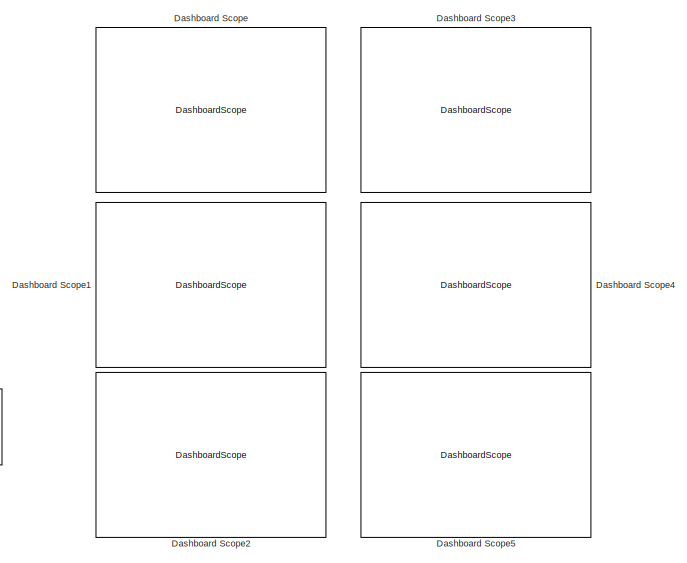
[diagram: root canvas - part 1/4, top center region]
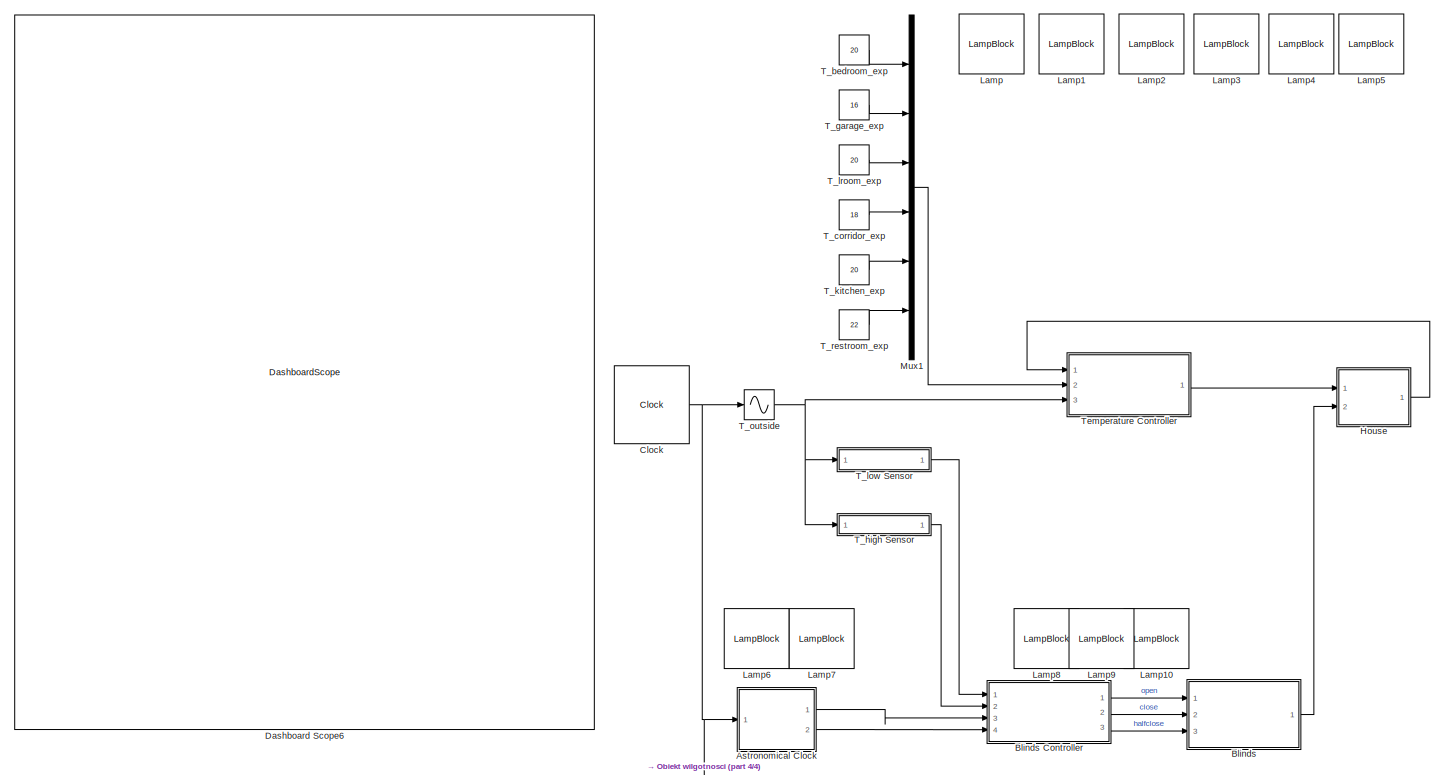
[diagram: root canvas - part 2/4, middle left region]
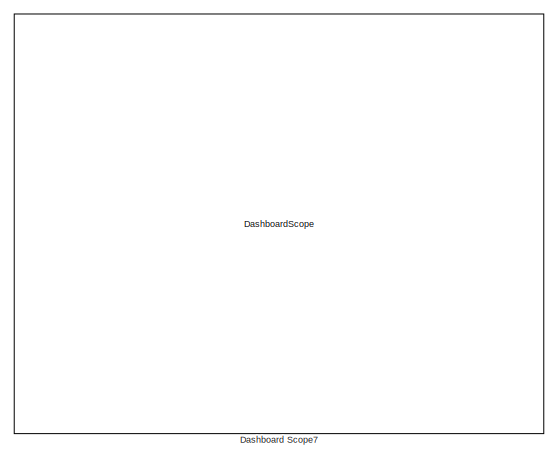
[diagram: root canvas - part 3/4, bottom right region]
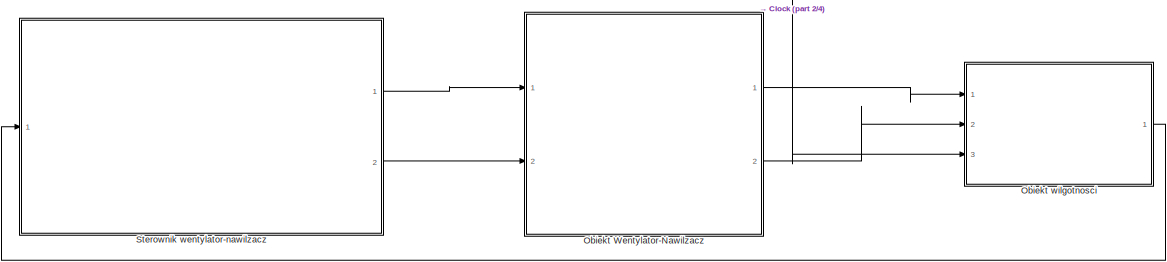
[diagram: root canvas - part 4/4, bottom center region]
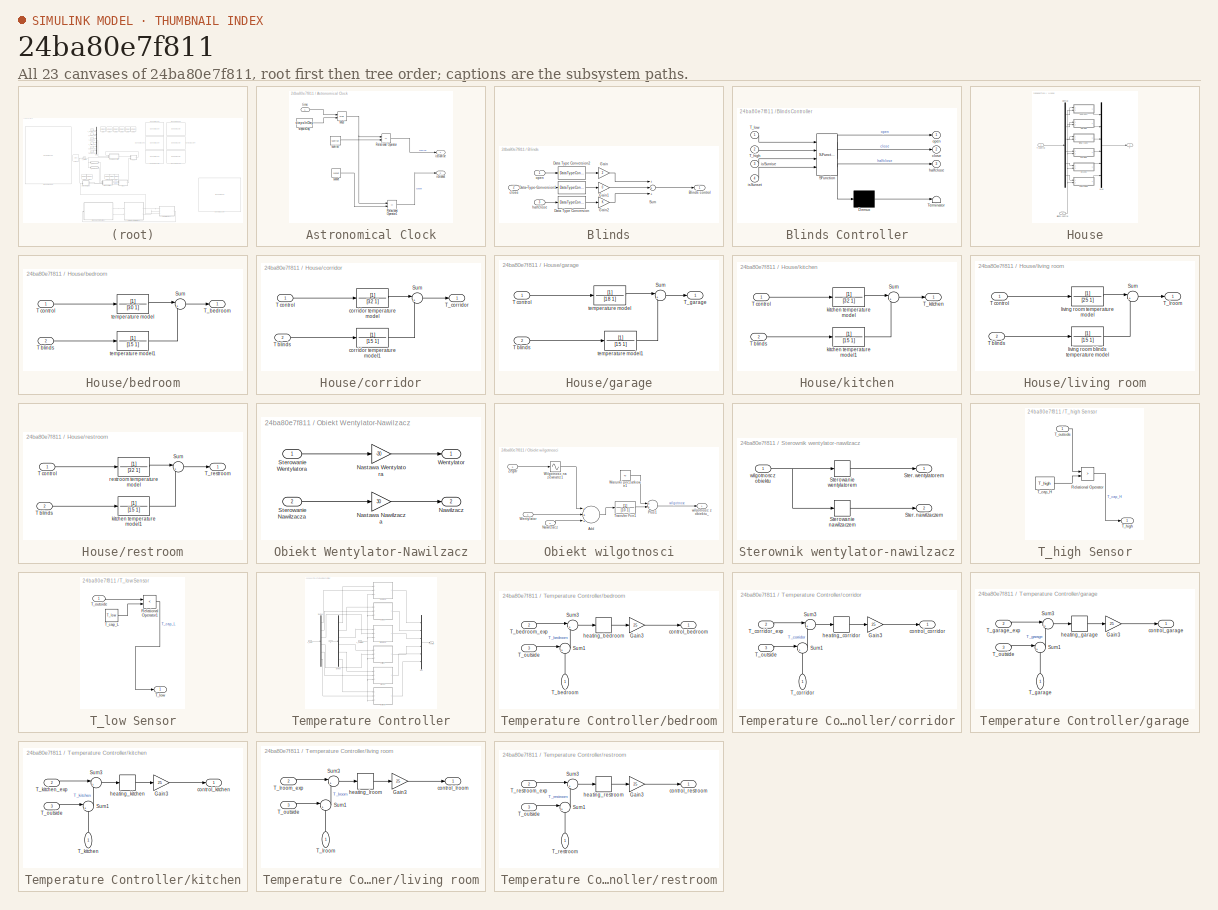
[diagram: thumbnail index - all 23 canvases of the model, root first then tree order]
MODEL slx_24ba80e7f811
KIND model
CONFIG AbsTol = auto
CONFIG EnableMultiTasking = off
CONFIG FixedStep = auto
CONFIG MaxStep = auto
CONFIG MinStep = auto
CONFIG RelTol = 1e-3
CONFIG SampleTimeConstraint = Unconstrained
CONFIG Solver = VariableStepAuto
CONFIG SolverName = VariableStepAuto
CONFIG StartTime = 0.0
CONFIG StopTime = intervals
BLOCK [SubSystem] Astronomical Clock
  Ports = [1, 2]
  RequestExecContextInheritance = off
BLOCK [Math] Astronomical Clock/Mod
  Operator = mod
  Ports = [2, 1]
BLOCK [RelationalOperator] Astronomical Clock/Relational Operator
  InputSameDT = off
  Operator = ==
  OutDataTypeStr = boolean
  Ports = [2, 1]
  RndMeth = Simplest
BLOCK [RelationalOperator] Astronomical Clock/Relational Operator1
  InputSameDT = off
  Operator = ==
  OutDataTypeStr = boolean
  Ports = [2, 1]
  RndMeth = Simplest
BLOCK [Outport] Astronomical Clock/isSunrise
  IconDisplay = Port number
BLOCK [Outport] Astronomical Clock/isSunset
  IconDisplay = Port number
  Port = 2
BLOCK [Constant] Astronomical Clock/stepsInDay
  Value = stepsInDay
BLOCK [Constant] Astronomical Clock/sunrise
  Value = sunrise
BLOCK [Constant] Astronomical Clock/sunset
  Value = sunset
BLOCK [Inport] Astronomical Clock/time
  IconDisplay = Port number
BLOCK [SubSystem] Blinds
  Ports = [3, 1]
  RequestExecContextInheritance = off
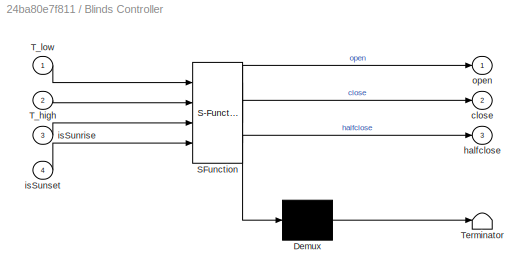
BLOCK [SubSystem] Blinds Controller
  ErrorFcn = Stateflow.Translate.translate
  PermitHierarchicalResolution = ExplicitOnly
  Ports = [4, 3]
  RequestExecContextInheritance = off
  SFBlockType = Chart
  TreatAsAtomicUnit = on
BLOCK [Demux] Blinds Controller/ Demux 
  Outputs = 1
  Ports = [1, 1]
BLOCK [S-Function] Blinds Controller/ SFunction 
  EnableBusSupport = on
  FunctionName = sf_sfun
  PortCounts = [4 4]
  Ports = [4, 4]
  SFcnIsStateOwnerBlock = off
  SFunctionDeploymentMode = off
  Tag = Stateflow S-Function test_27112020 3
BLOCK [Terminator] Blinds Controller/ Terminator 
BLOCK [Inport] Blinds Controller/T_high
  IconDisplay = Port number
  Port = 2
BLOCK [Inport] Blinds Controller/T_low
  IconDisplay = Port number
BLOCK [Outport] Blinds Controller/close
  IconDisplay = Port number
  Port = 2
BLOCK [Outport] Blinds Controller/halfclose
  IconDisplay = Port number
  Port = 3
BLOCK [Inport] Blinds Controller/isSunrise
  IconDisplay = Port number
  Port = 3
BLOCK [Inport] Blinds Controller/isSunset
  IconDisplay = Port number
  Port = 4
BLOCK [Outport] Blinds Controller/open
  IconDisplay = Port number
BLOCK [Outport] Blinds/Blinds control
  IconDisplay = Port number
BLOCK [DataTypeConversion] Blinds/Data Type Conversion
  RndMeth = Floor
  SaturateOnIntegerOverflow = off
BLOCK [DataTypeConversion] Blinds/Data Type Conversion1
  RndMeth = Floor
  SaturateOnIntegerOverflow = off
BLOCK [DataTypeConversion] Blinds/Data Type Conversion2
  RndMeth = Floor
  SaturateOnIntegerOverflow = off
BLOCK [Gain] Blinds/Gain
  Gain = 2
  OutDataTypeStr = Inherit: Inherit via internal rule
  ParamDataTypeStr = Inherit: Inherit via internal rule
  SaturateOnIntegerOverflow = off
BLOCK [Gain] Blinds/Gain1
  Gain = 0
  OutDataTypeStr = Inherit: Inherit via internal rule
  ParamDataTypeStr = Inherit: Inherit via internal rule
  SaturateOnIntegerOverflow = off
BLOCK [Gain] Blinds/Gain2
  OutDataTypeStr = Inherit: Inherit via internal rule
  ParamDataTypeStr = Inherit: Inherit via internal rule
  SaturateOnIntegerOverflow = off
BLOCK [Sum] Blinds/Sum
  InputSameDT = off
  Inputs = +++
  OutDataTypeStr = Inherit: Inherit via internal rule
  Ports = [3, 1]
  SaturateOnIntegerOverflow = off
BLOCK [Inport] Blinds/close
  IconDisplay = Port number
  Port = 2
BLOCK [Inport] Blinds/halfclose
  IconDisplay = Port number
  Port = 3
BLOCK [Inport] Blinds/open
  IconDisplay = Port number
BLOCK [Clock] Clock 
  Decimation = 1
  DisplayTime = on
BLOCK [DashboardScope] Dashboard Scope
  WebBlockId = 48
BLOCK [DashboardScope] Dashboard Scope1
  WebBlockId = 49
BLOCK [DashboardScope] Dashboard Scope2
  WebBlockId = 50
BLOCK [DashboardScope] Dashboard Scope3
  WebBlockId = 51
BLOCK [DashboardScope] Dashboard Scope4
  WebBlockId = 52
BLOCK [DashboardScope] Dashboard Scope5
  WebBlockId = 53
BLOCK [DashboardScope] Dashboard Scope6
  WebBlockId = 54
  Ymax = 30
BLOCK [DashboardScope] Dashboard Scope7
  WebBlockId = 194
  Ymax = 100
  Ymin = 40
BLOCK [SubSystem] House
  Ports = [2, 1]
  RequestExecContextInheritance = off
BLOCK [Inport] House/Blinds control
  IconDisplay = Port number
  Port = 2
BLOCK [Demux] House/Demux
  DisplayOption = bar
  Outputs = 6
  Ports = [1, 6]
BLOCK [Mux] House/Mux
  DisplayOption = bar
  Inputs = 6
  Ports = [6, 1]
BLOCK [Outport] House/T
  IconDisplay = Port number
BLOCK [Inport] House/T control
  IconDisplay = Port number
BLOCK [SubSystem] House/bedroom
  Ports = [2, 1]
  RequestExecContextInheritance = off
BLOCK [Sum] House/bedroom/Sum
  IconShape = round
  InputSameDT = off
  Inputs = |++
  OutDataTypeStr = Inherit: Inherit via internal rule
  Ports = [2, 1]
  SaturateOnIntegerOverflow = off
BLOCK [Inport] House/bedroom/T blinds
  IconDisplay = Port number
  Port = 2
BLOCK [Inport] House/bedroom/T control
  IconDisplay = Port number
BLOCK [Outport] House/bedroom/T_bedroom
  IconDisplay = Port number
BLOCK [TransferFcn] House/bedroom/temperature model
  Denominator = [30 1]
BLOCK [TransferFcn] House/bedroom/temperature model1
  Denominator = [15 1]
BLOCK [SubSystem] House/corridor
  Ports = [2, 1]
  RequestExecContextInheritance = off
BLOCK [Sum] House/corridor/Sum
  IconShape = round
  InputSameDT = off
  Inputs = |++
  OutDataTypeStr = Inherit: Inherit via internal rule
  Ports = [2, 1]
  SaturateOnIntegerOverflow = off
BLOCK [Inport] House/corridor/T blinds
  IconDisplay = Port number
  Port = 2
BLOCK [Inport] House/corridor/T control
  IconDisplay = Port number
BLOCK [Outport] House/corridor/T_corridor
  IconDisplay = Port number
BLOCK [TransferFcn] House/corridor/corridor temperature model
  Denominator = [32 1]
BLOCK [TransferFcn] House/corridor/corridor temperature model1
  Denominator = [15 1]
BLOCK [SubSystem] House/garage
  Ports = [2, 1]
  RequestExecContextInheritance = off
BLOCK [Sum] House/garage/Sum
  IconShape = round
  InputSameDT = off
  Inputs = |++
  OutDataTypeStr = Inherit: Inherit via internal rule
  Ports = [2, 1]
  SaturateOnIntegerOverflow = off
BLOCK [Inport] House/garage/T blinds
  IconDisplay = Port number
  Port = 2
BLOCK [Inport] House/garage/T control
  IconDisplay = Port number
BLOCK [Outport] House/garage/T_garage
  IconDisplay = Port number
BLOCK [TransferFcn] House/garage/temperature model
  Denominator = [18 1]
BLOCK [TransferFcn] House/garage/temperature model1
  Denominator = [15 1]
BLOCK [SubSystem] House/kitchen
  Ports = [2, 1]
  RequestExecContextInheritance = off
BLOCK [Sum] House/kitchen/Sum
  IconShape = round
  InputSameDT = off
  Inputs = |++
  OutDataTypeStr = Inherit: Inherit via internal rule
  Ports = [2, 1]
  SaturateOnIntegerOverflow = off
BLOCK [Inport] House/kitchen/T blinds
  IconDisplay = Port number
  Port = 2
BLOCK [Inport] House/kitchen/T control
  IconDisplay = Port number
BLOCK [Outport] House/kitchen/T_kitchen
  IconDisplay = Port number
BLOCK [TransferFcn] House/kitchen/kitchen temperature model
  Denominator = [32 1]
BLOCK [TransferFcn] House/kitchen/kitchen temperature model1
  Denominator = [15 1]
BLOCK [SubSystem] House/living room
  Ports = [2, 1]
  RequestExecContextInheritance = off
BLOCK [Sum] House/living room/Sum
  IconShape = round
  InputSameDT = off
  Inputs = |++
  OutDataTypeStr = Inherit: Inherit via internal rule
  Ports = [2, 1]
  SaturateOnIntegerOverflow = off
BLOCK [Inport] House/living room/T blinds
  IconDisplay = Port number
  Port = 2
BLOCK [Inport] House/living room/T control
  IconDisplay = Port number
BLOCK [Outport] House/living room/T_lroom
  IconDisplay = Port number
BLOCK [TransferFcn] House/living room/living room blinds temperature model
  Denominator = [15 1]
BLOCK [TransferFcn] House/living room/living room temperature model
  Denominator = [25 1]
BLOCK [SubSystem] House/restroom
  Ports = [2, 1]
  RequestExecContextInheritance = off
BLOCK [Sum] House/restroom/Sum
  IconShape = round
  InputSameDT = off
  Inputs = |++
  OutDataTypeStr = Inherit: Inherit via internal rule
  Ports = [2, 1]
  SaturateOnIntegerOverflow = off
BLOCK [Inport] House/restroom/T blinds
  IconDisplay = Port number
  Port = 2
BLOCK [Inport] House/restroom/T control
  IconDisplay = Port number
BLOCK [Outport] House/restroom/T_restroom
  IconDisplay = Port number
BLOCK [TransferFcn] House/restroom/kitchen temperature model1
  Denominator = [15 1]
BLOCK [TransferFcn] House/restroom/restroom temperature model
  Denominator = [32 1]
BLOCK [LampBlock] Lamp
  WebBlockId = 103
BLOCK [LampBlock] Lamp1
  WebBlockId = 104
BLOCK [LampBlock] Lamp10
  WebBlockId = 105
BLOCK [LampBlock] Lamp2
  WebBlockId = 106
BLOCK [LampBlock] Lamp3
  WebBlockId = 107
BLOCK [LampBlock] Lamp4
  WebBlockId = 108
BLOCK [LampBlock] Lamp5
  WebBlockId = 109
BLOCK [LampBlock] Lamp6
  WebBlockId = 110
BLOCK [LampBlock] Lamp7
  WebBlockId = 111
BLOCK [LampBlock] Lamp8
  WebBlockId = 112
BLOCK [LampBlock] Lamp9
  WebBlockId = 113
BLOCK [Mux] Mux1
  DisplayOption = bar
  Inputs = 6
  Ports = [6, 1]
BLOCK [SubSystem] Obiekt Wentylator-Nawilzacz
  Ports = [2, 2]
  RequestExecContextInheritance = off
BLOCK [Gain] Obiekt Wentylator-Nawilzacz/Nastawa Nawilzacza
  Gain = 30
  OutDataTypeStr = Inherit: Inherit via internal rule
  ParamDataTypeStr = Inherit: Inherit via internal rule
  SaturateOnIntegerOverflow = off
BLOCK [Gain] Obiekt Wentylator-Nawilzacz/Nastawa Wentylatora
  Gain = -30
  OutDataTypeStr = Inherit: Inherit via internal rule
  ParamDataTypeStr = Inherit: Inherit via internal rule
  SaturateOnIntegerOverflow = off
BLOCK [Outport] Obiekt Wentylator-Nawilzacz/Nawilzacz
  IconDisplay = Port number
  Port = 2
BLOCK [Inport] Obiekt Wentylator-Nawilzacz/Sterowanie Nawilzacza
  IconDisplay = Port number
  Port = 2
BLOCK [Inport] Obiekt Wentylator-Nawilzacz/Sterowanie Wentylatora
  IconDisplay = Port number
BLOCK [Outport] Obiekt Wentylator-Nawilzacz/Wentylator
  IconDisplay = Port number
BLOCK [SubSystem] Obiekt wilgotnosci
  Ports = [3, 1]
  RequestExecContextInheritance = off
BLOCK [Sum] Obiekt wilgotnosci/Add
  InputSameDT = off
  Inputs = +++
  OutDataTypeStr = Inherit: Inherit via internal rule
  Ports = [3, 1]
  SaturateOnIntegerOverflow = off
BLOCK [Inport] Obiekt wilgotnosci/Nawilzacz
  IconDisplay = Port number
  Port = 2
BLOCK [Sum] Obiekt wilgotnosci/Plus1
  InputSameDT = off
  OutDataTypeStr = Inherit: Inherit via internal rule
  Ports = [2, 1]
  SaturateOnIntegerOverflow = off
BLOCK [TransferFcn] Obiekt wilgotnosci/Transfer Fcn1
  Denominator = [10 1]
BLOCK [Constant] Obiekt wilgotnosci/Warunki poczatkowe1
  Value = 40
BLOCK [Inport] Obiekt wilgotnosci/Wentylator
  IconDisplay = Port number
BLOCK [Sin] Obiekt wilgotnosci/Wilgotnosc na zewnatrz1
  Amplitude = 20
  Bias = 20
  Frequency = 2*pi/intervals
  Phase = -pi/2
  Ports = [1, 1]
  SampleTime = 0
  TimeSource = Use external signal
BLOCK [Inport] Obiekt wilgotnosci/Zegar
  IconDisplay = Port number
  Port = 3
BLOCK [Outport] Obiekt wilgotnosci/wilgotnosc z obiektu_
  IconDisplay = Port number
BLOCK [SubSystem] Sterownik wentylator-nawilzacz
  Ports = [1, 2]
  RequestExecContextInheritance = off
BLOCK [Outport] Sterownik wentylator-nawilzacz/Ster. nawilzaczem
  IconDisplay = Port number
  Port = 2
BLOCK [Outport] Sterownik wentylator-nawilzacz/Ster. wentylatorem
  IconDisplay = Port number
BLOCK [Relay] Sterownik wentylator-nawilzacz/Sterowanie nawilzaczem
  InputProcessing = Elements as channels (sample based)
  OffOutputValue = 1
  OffSwitchValue = 50
  OnOutputValue = 0
  OnSwitchValue = 60
BLOCK [Relay] Sterownik wentylator-nawilzacz/Sterowanie wentylatorem
  InputProcessing = Elements as channels (sample based)
  OffSwitchValue = 60
  OnSwitchValue = 70
BLOCK [Inport] Sterownik wentylator-nawilzacz/wilgotnosc z obiektu
  IconDisplay = Port number
BLOCK [Constant] T_bedroom_exp
  Value = 20
BLOCK [Constant] T_corridor_exp
  Value = 18
BLOCK [Constant] T_garage_exp
  Value = 16
BLOCK [SubSystem] T_high Sensor
  Ports = [1, 1]
  RequestExecContextInheritance = off
BLOCK [RelationalOperator] T_high Sensor/Relational Operator
  InputSameDT = off
  Operator = >
  OutDataTypeStr = boolean
  Ports = [2, 1]
  RndMeth = Simplest
BLOCK [Constant] T_high Sensor/T_cap_H
  Value = T_high
BLOCK [Outport] T_high Sensor/T_high
  IconDisplay = Port number
BLOCK [Inport] T_high Sensor/T_outside
  IconDisplay = Port number
BLOCK [Constant] T_kitchen_exp
  Value = 20
BLOCK [SubSystem] T_low Sensor
  Ports = [1, 1]
  RequestExecContextInheritance = off
BLOCK [RelationalOperator] T_low Sensor/Relational Operator1
  InputSameDT = off
  Operator = <
  OutDataTypeStr = boolean
  Ports = [2, 1]
  RndMeth = Simplest
BLOCK [Constant] T_low Sensor/T_cap_L
  Value = T_low
BLOCK [Outport] T_low Sensor/T_low
  IconDisplay = Port number
BLOCK [Inport] T_low Sensor/T_outside
  IconDisplay = Port number
BLOCK [Constant] T_lroom_exp
  Value = 20
BLOCK [Sin] T_outside
  Amplitude = 17
  Bias = 10
  Frequency = 2*pi/stepsInDay
  Phase = -pi/2
  Ports = [1, 1]
  SampleTime = 0
  TimeSource = Use external signal
BLOCK [Constant] T_restroom_exp
  Value = 22
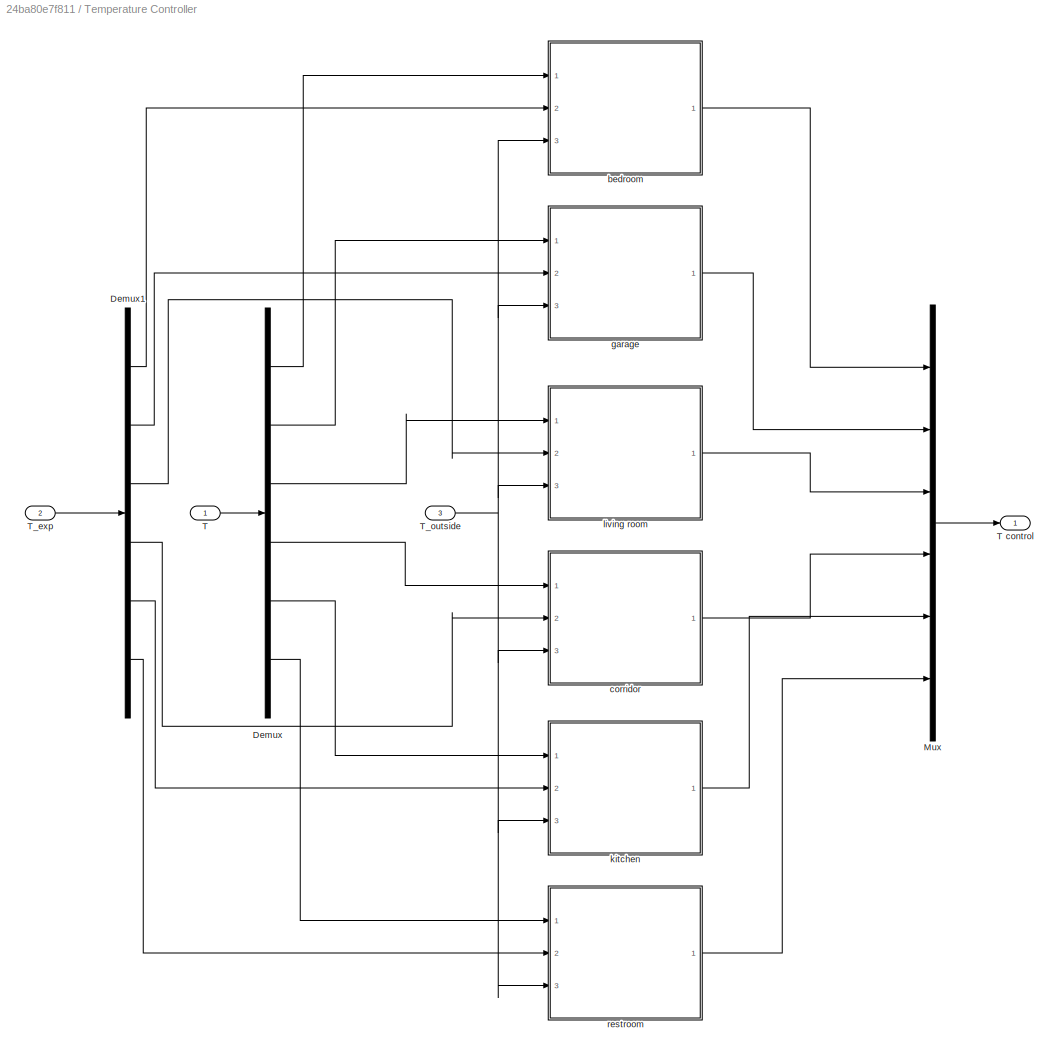
BLOCK [SubSystem] Temperature Controller
  Ports = [3, 1]
  RequestExecContextInheritance = off
BLOCK [Demux] Temperature Controller/Demux
  DisplayOption = bar
  Outputs = 6
  Ports = [1, 6]
BLOCK [Demux] Temperature Controller/Demux1
  DisplayOption = bar
  Outputs = 6
  Ports = [1, 6]
BLOCK [Mux] Temperature Controller/Mux
  DisplayOption = bar
  Inputs = 6
  Ports = [6, 1]
BLOCK [Inport] Temperature Controller/T
  IconDisplay = Port number
BLOCK [Outport] Temperature Controller/T control
  IconDisplay = Port number
BLOCK [Inport] Temperature Controller/T_exp
  IconDisplay = Port number
  Port = 2
BLOCK [Inport] Temperature Controller/T_outside
  IconDisplay = Port number
  Port = 3
BLOCK [SubSystem] Temperature Controller/bedroom
  Ports = [3, 1]
  RequestExecContextInheritance = off
BLOCK [Gain] Temperature Controller/bedroom/Gain3
  Gain = 25
  OutDataTypeStr = Inherit: Inherit via internal rule
  ParamDataTypeStr = Inherit: Inherit via internal rule
  SaturateOnIntegerOverflow = off
BLOCK [Sum] Temperature Controller/bedroom/Sum1
  IconShape = round
  InputSameDT = off
  Inputs = |++
  OutDataTypeStr = Inherit: Inherit via internal rule
  Ports = [2, 1]
  SaturateOnIntegerOverflow = off
BLOCK [Sum] Temperature Controller/bedroom/Sum3
  IconShape = round
  InputSameDT = off
  Inputs = |+-
  OutDataTypeStr = Inherit: Inherit via internal rule
  Ports = [2, 1]
  SaturateOnIntegerOverflow = off
BLOCK [Inport] Temperature Controller/bedroom/T_bedroom
  IconDisplay = Port number
BLOCK [Inport] Temperature Controller/bedroom/T_bedroom_exp
  IconDisplay = Port number
  Port = 2
BLOCK [Inport] Temperature Controller/bedroom/T_outside
  IconDisplay = Port number
  Port = 3
BLOCK [Outport] Temperature Controller/bedroom/control_bedroom
  IconDisplay = Port number
BLOCK [Relay] Temperature Controller/bedroom/heating_bedroom
  InputProcessing = Elements as channels (sample based)
  OffSwitchValue = -2
  OnSwitchValue = 2
BLOCK [SubSystem] Temperature Controller/corridor
  Ports = [3, 1]
  RequestExecContextInheritance = off
BLOCK [Gain] Temperature Controller/corridor/Gain3
  Gain = 25
  OutDataTypeStr = Inherit: Inherit via internal rule
  ParamDataTypeStr = Inherit: Inherit via internal rule
  SaturateOnIntegerOverflow = off
BLOCK [Sum] Temperature Controller/corridor/Sum1
  IconShape = round
  InputSameDT = off
  Inputs = |++
  OutDataTypeStr = Inherit: Inherit via internal rule
  Ports = [2, 1]
  SaturateOnIntegerOverflow = off
BLOCK [Sum] Temperature Controller/corridor/Sum3
  IconShape = round
  InputSameDT = off
  Inputs = |+-
  OutDataTypeStr = Inherit: Inherit via internal rule
  Ports = [2, 1]
  SaturateOnIntegerOverflow = off
BLOCK [Inport] Temperature Controller/corridor/T_corridor
  IconDisplay = Port number
BLOCK [Inport] Temperature Controller/corridor/T_corridor_exp
  IconDisplay = Port number
  Port = 2
BLOCK [Inport] Temperature Controller/corridor/T_outside
  IconDisplay = Port number
  Port = 3
BLOCK [Outport] Temperature Controller/corridor/control_corridor
  IconDisplay = Port number
BLOCK [Relay] Temperature Controller/corridor/heating_corridor
  InputProcessing = Elements as channels (sample based)
  OffSwitchValue = -2
  OnSwitchValue = 2
BLOCK [SubSystem] Temperature Controller/garage
  Ports = [3, 1]
  RequestExecContextInheritance = off
BLOCK [Gain] Temperature Controller/garage/Gain3
  Gain = 25
  OutDataTypeStr = Inherit: Inherit via internal rule
  ParamDataTypeStr = Inherit: Inherit via internal rule
  SaturateOnIntegerOverflow = off
BLOCK [Sum] Temperature Controller/garage/Sum1
  IconShape = round
  InputSameDT = off
  Inputs = |++
  OutDataTypeStr = Inherit: Inherit via internal rule
  Ports = [2, 1]
  SaturateOnIntegerOverflow = off
BLOCK [Sum] Temperature Controller/garage/Sum3
  IconShape = round
  InputSameDT = off
  Inputs = |+-
  OutDataTypeStr = Inherit: Inherit via internal rule
  Ports = [2, 1]
  SaturateOnIntegerOverflow = off
BLOCK [Inport] Temperature Controller/garage/T_garage
  IconDisplay = Port number
BLOCK [Inport] Temperature Controller/garage/T_garage_exp
  IconDisplay = Port number
  Port = 2
BLOCK [Inport] Temperature Controller/garage/T_outside
  IconDisplay = Port number
  Port = 3
BLOCK [Outport] Temperature Controller/garage/control_garage
  IconDisplay = Port number
BLOCK [Relay] Temperature Controller/garage/heating_garage
  InputProcessing = Elements as channels (sample based)
  OffSwitchValue = -2
  OnSwitchValue = 2
BLOCK [SubSystem] Temperature Controller/kitchen
  Ports = [3, 1]
  RequestExecContextInheritance = off
BLOCK [Gain] Temperature Controller/kitchen/Gain3
  Gain = 25
  OutDataTypeStr = Inherit: Inherit via internal rule
  ParamDataTypeStr = Inherit: Inherit via internal rule
  SaturateOnIntegerOverflow = off
BLOCK [Sum] Temperature Controller/kitchen/Sum1
  IconShape = round
  InputSameDT = off
  Inputs = |++
  OutDataTypeStr = Inherit: Inherit via internal rule
  Ports = [2, 1]
  SaturateOnIntegerOverflow = off
BLOCK [Sum] Temperature Controller/kitchen/Sum3
  IconShape = round
  InputSameDT = off
  Inputs = |+-
  OutDataTypeStr = Inherit: Inherit via internal rule
  Ports = [2, 1]
  SaturateOnIntegerOverflow = off
BLOCK [Inport] Temperature Controller/kitchen/T_kitchen
  IconDisplay = Port number
BLOCK [Inport] Temperature Controller/kitchen/T_kitchen_exp
  IconDisplay = Port number
  Port = 2
BLOCK [Inport] Temperature Controller/kitchen/T_outside
  IconDisplay = Port number
  Port = 3
BLOCK [Outport] Temperature Controller/kitchen/control_kitchen
  IconDisplay = Port number
BLOCK [Relay] Temperature Controller/kitchen/heating_kitchen
  InputProcessing = Elements as channels (sample based)
  OffSwitchValue = -2
  OnSwitchValue = 2
BLOCK [SubSystem] Temperature Controller/living room
  Ports = [3, 1]
  RequestExecContextInheritance = off
BLOCK [Gain] Temperature Controller/living room/Gain3
  Gain = 25
  OutDataTypeStr = Inherit: Inherit via internal rule
  ParamDataTypeStr = Inherit: Inherit via internal rule
  SaturateOnIntegerOverflow = off
BLOCK [Sum] Temperature Controller/living room/Sum1
  IconShape = round
  InputSameDT = off
  Inputs = |++
  OutDataTypeStr = Inherit: Inherit via internal rule
  Ports = [2, 1]
  SaturateOnIntegerOverflow = off
BLOCK [Sum] Temperature Controller/living room/Sum3
  IconShape = round
  InputSameDT = off
  Inputs = |+-
  OutDataTypeStr = Inherit: Inherit via internal rule
  Ports = [2, 1]
  SaturateOnIntegerOverflow = off
BLOCK [Inport] Temperature Controller/living room/T_lroom
  IconDisplay = Port number
BLOCK [Inport] Temperature Controller/living room/T_lroom_exp
  IconDisplay = Port number
  Port = 2
BLOCK [Inport] Temperature Controller/living room/T_outside
  IconDisplay = Port number
  Port = 3
BLOCK [Outport] Temperature Controller/living room/control_lroom
  IconDisplay = Port number
BLOCK [Relay] Temperature Controller/living room/heating_lroom
  InputProcessing = Elements as channels (sample based)
  OffSwitchValue = -2
  OnSwitchValue = 2
BLOCK [SubSystem] Temperature Controller/restroom
  Ports = [3, 1]
  RequestExecContextInheritance = off
BLOCK [Gain] Temperature Controller/restroom/Gain3
  Gain = 25
  OutDataTypeStr = Inherit: Inherit via internal rule
  ParamDataTypeStr = Inherit: Inherit via internal rule
  SaturateOnIntegerOverflow = off
BLOCK [Sum] Temperature Controller/restroom/Sum1
  IconShape = round
  InputSameDT = off
  Inputs = |++
  OutDataTypeStr = Inherit: Inherit via internal rule
  Ports = [2, 1]
  SaturateOnIntegerOverflow = off
BLOCK [Sum] Temperature Controller/restroom/Sum3
  IconShape = round
  InputSameDT = off
  Inputs = |+-
  OutDataTypeStr = Inherit: Inherit via internal rule
  Ports = [2, 1]
  SaturateOnIntegerOverflow = off
BLOCK [Inport] Temperature Controller/restroom/T_outside
  IconDisplay = Port number
  Port = 3
BLOCK [Inport] Temperature Controller/restroom/T_restroom
  IconDisplay = Port number
BLOCK [Inport] Temperature Controller/restroom/T_restroom_exp
  IconDisplay = Port number
  Port = 2
BLOCK [Outport] Temperature Controller/restroom/control_restroom
  IconDisplay = Port number
BLOCK [Relay] Temperature Controller/restroom/heating_restroom
  InputProcessing = Elements as channels (sample based)
  OffSwitchValue = -2
  OnSwitchValue = 2
NET Astronomical Clock/Mod:1 -> Astronomical Clock/Relational Operator1:1, Astronomical Clock/Relational Operator:1
LINE Astronomical Clock/Relational Operator1:1 -> Astronomical Clock/isSunset:1
LINE Astronomical Clock/Relational Operator:1 -> Astronomical Clock/isSunrise:1
LINE Astronomical Clock/stepsInDay:1 -> Astronomical Clock/Mod:2
LINE Astronomical Clock/sunrise:1 -> Astronomical Clock/Relational Operator:2
LINE Astronomical Clock/sunset:1 -> Astronomical Clock/Relational Operator1:2
LINE Astronomical Clock/time:1 -> Astronomical Clock/Mod:1
LINE Astronomical Clock:1 -> Blinds Controller:3
LINE Astronomical Clock:2 -> Blinds Controller:4
LINE Blinds Controller:1 -> Blinds:1
LINE Blinds Controller:2 -> Blinds:2
LINE Blinds Controller:3 -> Blinds:3
LINE Blinds/Data Type Conversion1:1 -> Blinds/Gain1:1
LINE Blinds/Data Type Conversion2:1 -> Blinds/Gain:1
LINE Blinds/Data Type Conversion:1 -> Blinds/Gain2:1
LINE Blinds/Gain1:1 -> Blinds/Sum:2
LINE Blinds/Gain2:1 -> Blinds/Sum:3
LINE Blinds/Gain:1 -> Blinds/Sum:1
LINE Blinds/Sum:1 -> Blinds/Blinds control:1
LINE Blinds/close:1 -> Blinds/Data Type Conversion1:1
LINE Blinds/halfclose:1 -> Blinds/Data Type Conversion:1
LINE Blinds/open:1 -> Blinds/Data Type Conversion2:1
LINE Blinds:1 -> House:2
NET Clock :1 -> Astronomical Clock:1, Obiekt wilgotnosci:3, T_outside:1
NET House/Blinds control:1 -> House/bedroom:2, House/corridor:2, House/garage:2, House/kitchen:2, House/living room:2, House/restroom:2
LINE House/Demux:1 -> House/bedroom:1
LINE House/Demux:2 -> House/garage:1
LINE House/Demux:3 -> House/living room:1
LINE House/Demux:4 -> House/corridor:1
LINE House/Demux:5 -> House/kitchen:1
LINE House/Demux:6 -> House/restroom:1
LINE House/Mux:1 -> House/T:1
LINE House/T control:1 -> House/Demux:1
LINE House/bedroom/Sum:1 -> House/bedroom/T_bedroom:1
LINE House/bedroom/T blinds:1 -> House/bedroom/temperature model1:1
LINE House/bedroom/T control:1 -> House/bedroom/temperature model:1
LINE House/bedroom/temperature model1:1 -> House/bedroom/Sum:2
LINE House/bedroom/temperature model:1 -> House/bedroom/Sum:1
LINE House/bedroom:1 -> House/Mux:1
LINE House/corridor/Sum:1 -> House/corridor/T_corridor:1
LINE House/corridor/T blinds:1 -> House/corridor/corridor temperature model1:1
LINE House/corridor/T control:1 -> House/corridor/corridor temperature model:1
LINE House/corridor/corridor temperature model1:1 -> House/corridor/Sum:2
LINE House/corridor/corridor temperature model:1 -> House/corridor/Sum:1
LINE House/corridor:1 -> House/Mux:4
LINE House/garage/Sum:1 -> House/garage/T_garage:1
LINE House/garage/T blinds:1 -> House/garage/temperature model1:1
LINE House/garage/T control:1 -> House/garage/temperature model:1
LINE House/garage/temperature model1:1 -> House/garage/Sum:2
LINE House/garage/temperature model:1 -> House/garage/Sum:1
LINE House/garage:1 -> House/Mux:2
LINE House/kitchen/Sum:1 -> House/kitchen/T_kitchen:1
LINE House/kitchen/T blinds:1 -> House/kitchen/kitchen temperature model1:1
LINE House/kitchen/T control:1 -> House/kitchen/kitchen temperature model:1
LINE House/kitchen/kitchen temperature model1:1 -> House/kitchen/Sum:2
LINE House/kitchen/kitchen temperature model:1 -> House/kitchen/Sum:1
LINE House/kitchen:1 -> House/Mux:5
LINE House/living room/Sum:1 -> House/living room/T_lroom:1
LINE House/living room/T blinds:1 -> House/living room/living room blinds temperature model:1
LINE House/living room/T control:1 -> House/living room/living room temperature model:1
LINE House/living room/living room blinds temperature model:1 -> House/living room/Sum:2
LINE House/living room/living room temperature model:1 -> House/living room/Sum:1
LINE House/living room:1 -> House/Mux:3
LINE House/restroom/Sum:1 -> House/restroom/T_restroom:1
LINE House/restroom/T blinds:1 -> House/restroom/kitchen temperature model1:1
LINE House/restroom/T control:1 -> House/restroom/restroom temperature model:1
LINE House/restroom/kitchen temperature model1:1 -> House/restroom/Sum:2
LINE House/restroom/restroom temperature model:1 -> House/restroom/Sum:1
LINE House/restroom:1 -> House/Mux:6
LINE House:1 -> Temperature Controller:1
LINE Mux1:1 -> Temperature Controller:2
LINE Obiekt Wentylator-Nawilzacz/Nastawa Nawilzacza:1 -> Obiekt Wentylator-Nawilzacz/Nawilzacz:1
LINE Obiekt Wentylator-Nawilzacz/Nastawa Wentylatora:1 -> Obiekt Wentylator-Nawilzacz/Wentylator:1
LINE Obiekt Wentylator-Nawilzacz/Sterowanie Nawilzacza:1 -> Obiekt Wentylator-Nawilzacz/Nastawa Nawilzacza:1
LINE Obiekt Wentylator-Nawilzacz/Sterowanie Wentylatora:1 -> Obiekt Wentylator-Nawilzacz/Nastawa Wentylatora:1
LINE Obiekt Wentylator-Nawilzacz:1 -> Obiekt wilgotnosci:1
LINE Obiekt Wentylator-Nawilzacz:2 -> Obiekt wilgotnosci:2
LINE Obiekt wilgotnosci/Add:1 -> Obiekt wilgotnosci/Transfer Fcn1:1
LINE Obiekt wilgotnosci/Nawilzacz:1 -> Obiekt wilgotnosci/Add:3
LINE Obiekt wilgotnosci/Plus1:1 -> Obiekt wilgotnosci/wilgotnosc z obiektu_:1
LINE Obiekt wilgotnosci/Transfer Fcn1:1 -> Obiekt wilgotnosci/Plus1:2
LINE Obiekt wilgotnosci/Warunki poczatkowe1:1 -> Obiekt wilgotnosci/Plus1:1
LINE Obiekt wilgotnosci/Wentylator:1 -> Obiekt wilgotnosci/Add:2
LINE Obiekt wilgotnosci/Wilgotnosc na zewnatrz1:1 -> Obiekt wilgotnosci/Add:1
LINE Obiekt wilgotnosci/Zegar:1 -> Obiekt wilgotnosci/Wilgotnosc na zewnatrz1:1
LINE Obiekt wilgotnosci:1 -> Sterownik wentylator-nawilzacz:1
LINE Sterownik wentylator-nawilzacz/Sterowanie nawilzaczem:1 -> Sterownik wentylator-nawilzacz/Ster. nawilzaczem:1
LINE Sterownik wentylator-nawilzacz/Sterowanie wentylatorem:1 -> Sterownik wentylator-nawilzacz/Ster. wentylatorem:1
NET Sterownik wentylator-nawilzacz/wilgotnosc z obiektu:1 -> Sterownik wentylator-nawilzacz/Sterowanie nawilzaczem:1, Sterownik wentylator-nawilzacz/Sterowanie wentylatorem:1
LINE Sterownik wentylator-nawilzacz:1 -> Obiekt Wentylator-Nawilzacz:1
LINE Sterownik wentylator-nawilzacz:2 -> Obiekt Wentylator-Nawilzacz:2
LINE T_bedroom_exp:1 -> Mux1:1
LINE T_corridor_exp:1 -> Mux1:4
LINE T_garage_exp:1 -> Mux1:2
LINE T_high Sensor/Relational Operator:1 -> T_high Sensor/T_high:1
LINE T_high Sensor/T_cap_H:1 -> T_high Sensor/Relational Operator:2
LINE T_high Sensor/T_outside:1 -> T_high Sensor/Relational Operator:1
LINE T_high Sensor:1 -> Blinds Controller:2
LINE T_kitchen_exp:1 -> Mux1:5
LINE T_low Sensor/Relational Operator1:1 -> T_low Sensor/T_low:1
LINE T_low Sensor/T_cap_L:1 -> T_low Sensor/Relational Operator1:2
LINE T_low Sensor/T_outside:1 -> T_low Sensor/Relational Operator1:1
LINE T_low Sensor:1 -> Blinds Controller:1
LINE T_lroom_exp:1 -> Mux1:3
NET T_outside:1 -> T_high Sensor:1, T_low Sensor:1, Temperature Controller:3
LINE T_restroom_exp:1 -> Mux1:6
LINE Temperature Controller/Demux1:1 -> Temperature Controller/bedroom:2
LINE Temperature Controller/Demux1:2 -> Temperature Controller/garage:2
LINE Temperature Controller/Demux1:3 -> Temperature Controller/living room:2
LINE Temperature Controller/Demux1:4 -> Temperature Controller/corridor:2
LINE Temperature Controller/Demux1:5 -> Temperature Controller/kitchen:2
LINE Temperature Controller/Demux1:6 -> Temperature Controller/restroom:2
LINE Temperature Controller/Demux:1 -> Temperature Controller/bedroom:1
LINE Temperature Controller/Demux:2 -> Temperature Controller/garage:1
LINE Temperature Controller/Demux:3 -> Temperature Controller/living room:1
LINE Temperature Controller/Demux:4 -> Temperature Controller/corridor:1
LINE Temperature Controller/Demux:5 -> Temperature Controller/kitchen:1
LINE Temperature Controller/Demux:6 -> Temperature Controller/restroom:1
LINE Temperature Controller/Mux:1 -> Temperature Controller/T control:1
LINE Temperature Controller/T:1 -> Temperature Controller/Demux:1
LINE Temperature Controller/T_exp:1 -> Temperature Controller/Demux1:1
NET Temperature Controller/T_outside:1 -> Temperature Controller/bedroom:3, Temperature Controller/corridor:3, Temperature Controller/garage:3, Temperature Controller/kitchen:3, Temperature Controller/living room:3, Temperature Controller/restroom:3
LINE Temperature Controller/bedroom/Gain3:1 -> Temperature Controller/bedroom/control_bedroom:1
LINE Temperature Controller/bedroom/Sum1:1 -> Temperature Controller/bedroom/Sum3:2
LINE Temperature Controller/bedroom/Sum3:1 -> Temperature Controller/bedroom/heating_bedroom:1
LINE Temperature Controller/bedroom/T_bedroom:1 -> Temperature Controller/bedroom/Sum1:2
LINE Temperature Controller/bedroom/T_bedroom_exp:1 -> Temperature Controller/bedroom/Sum3:1
LINE Temperature Controller/bedroom/T_outside:1 -> Temperature Controller/bedroom/Sum1:1
LINE Temperature Controller/bedroom/heating_bedroom:1 -> Temperature Controller/bedroom/Gain3:1
LINE Temperature Controller/bedroom:1 -> Temperature Controller/Mux:1
LINE Temperature Controller/corridor/Gain3:1 -> Temperature Controller/corridor/control_corridor:1
LINE Temperature Controller/corridor/Sum1:1 -> Temperature Controller/corridor/Sum3:2
LINE Temperature Controller/corridor/Sum3:1 -> Temperature Controller/corridor/heating_corridor:1
LINE Temperature Controller/corridor/T_corridor:1 -> Temperature Controller/corridor/Sum1:2
LINE Temperature Controller/corridor/T_corridor_exp:1 -> Temperature Controller/corridor/Sum3:1
LINE Temperature Controller/corridor/T_outside:1 -> Temperature Controller/corridor/Sum1:1
LINE Temperature Controller/corridor/heating_corridor:1 -> Temperature Controller/corridor/Gain3:1
LINE Temperature Controller/corridor:1 -> Temperature Controller/Mux:4
LINE Temperature Controller/garage/Gain3:1 -> Temperature Controller/garage/control_garage:1
LINE Temperature Controller/garage/Sum1:1 -> Temperature Controller/garage/Sum3:2
LINE Temperature Controller/garage/Sum3:1 -> Temperature Controller/garage/heating_garage:1
LINE Temperature Controller/garage/T_garage:1 -> Temperature Controller/garage/Sum1:2
LINE Temperature Controller/garage/T_garage_exp:1 -> Temperature Controller/garage/Sum3:1
LINE Temperature Controller/garage/T_outside:1 -> Temperature Controller/garage/Sum1:1
LINE Temperature Controller/garage/heating_garage:1 -> Temperature Controller/garage/Gain3:1
LINE Temperature Controller/garage:1 -> Temperature Controller/Mux:2
LINE Temperature Controller/kitchen/Gain3:1 -> Temperature Controller/kitchen/control_kitchen:1
LINE Temperature Controller/kitchen/Sum1:1 -> Temperature Controller/kitchen/Sum3:2
LINE Temperature Controller/kitchen/Sum3:1 -> Temperature Controller/kitchen/heating_kitchen:1
LINE Temperature Controller/kitchen/T_kitchen:1 -> Temperature Controller/kitchen/Sum1:2
LINE Temperature Controller/kitchen/T_kitchen_exp:1 -> Temperature Controller/kitchen/Sum3:1
LINE Temperature Controller/kitchen/T_outside:1 -> Temperature Controller/kitchen/Sum1:1
LINE Temperature Controller/kitchen/heating_kitchen:1 -> Temperature Controller/kitchen/Gain3:1
LINE Temperature Controller/kitchen:1 -> Temperature Controller/Mux:5
LINE Temperature Controller/living room/Gain3:1 -> Temperature Controller/living room/control_lroom:1
LINE Temperature Controller/living room/Sum1:1 -> Temperature Controller/living room/Sum3:2
LINE Temperature Controller/living room/Sum3:1 -> Temperature Controller/living room/heating_lroom:1
LINE Temperature Controller/living room/T_lroom:1 -> Temperature Controller/living room/Sum1:2
LINE Temperature Controller/living room/T_lroom_exp:1 -> Temperature Controller/living room/Sum3:1
LINE Temperature Controller/living room/T_outside:1 -> Temperature Controller/living room/Sum1:1
LINE Temperature Controller/living room/heating_lroom:1 -> Temperature Controller/living room/Gain3:1
LINE Temperature Controller/living room:1 -> Temperature Controller/Mux:3
LINE Temperature Controller/restroom/Gain3:1 -> Temperature Controller/restroom/control_restroom:1
LINE Temperature Controller/restroom/Sum1:1 -> Temperature Controller/restroom/Sum3:2
LINE Temperature Controller/restroom/Sum3:1 -> Temperature Controller/restroom/heating_restroom:1
LINE Temperature Controller/restroom/T_outside:1 -> Temperature Controller/restroom/Sum1:1
LINE Temperature Controller/restroom/T_restroom:1 -> Temperature Controller/restroom/Sum1:2
LINE Temperature Controller/restroom/T_restroom_exp:1 -> Temperature Controller/restroom/Sum3:1
LINE Temperature Controller/restroom/heating_restroom:1 -> Temperature Controller/restroom/Gain3:1
LINE Temperature Controller/restroom:1 -> Temperature Controller/Mux:6
LINE Temperature Controller:1 -> House:1
note: NET lines group one-source signal fan-out (src -> all destinations, sorted); 1:1 wires keep LINE
CHART Blinds Controller states=7 transitions=9
  STATE_LABEL 'State'
  STATE_LABEL 'Night'
  STATE_LABEL 'Open\nopen = true;\nhalfclose = false;\nclose = false;'
  STATE_LABEL 'Close\nclose = true;\nopen = false;\nhalfclose = false;'
  STATE_LABEL '[T_low]'
  STATE_LABEL '[~T_low]'
  STATE_LABEL 'Day'
  STATE_LABEL 'HalfClose\nhalfclose = true;\nopen = false;\nclose = false;'
  STATE_LABEL 'Open\nopen = true;\nhalfclose = false;\nclose = false;'
  STATE_LABEL '[T_high]'
  STATE_LABEL '[~T_high]'
  STATE_LABEL '[isSunset]'
  STATE_LABEL '[isSunrise]'
  STATE_LABEL 'Night'
  STATE_LABEL 'Open\nopen = true;\nhalfclose = false;\nclose = false;'
  STATE_LABEL 'Close\nclose = true;\nopen = false;\nhalfclose = false;'
  STATE_LABEL '[T_low]'
  STATE_LABEL '[~T_low]'
  STATE_LABEL 'Open\nopen = true;\nhalfclose = false;\nclose = false;'
  STATE_LABEL 'Close\nclose = true;\nopen = false;\nhalfclose = false;'
  STATE_LABEL 'Day'
  STATE_LABEL 'HalfClose\nhalfclose = true;\nopen = false;\nclose = false;'
  STATE_LABEL 'Open\nopen = true;\nhalfclose = false;\nclose = false;'
  STATE_LABEL '[T_high]'
  STATE_LABEL '[~T_high]'
  STATE_LABEL 'HalfClose\nhalfclose = true;\nopen = false;\nclose = false;'
  STATE_LABEL 'Open\nopen = true;\nhalfclose = false;\nclose = false;'
